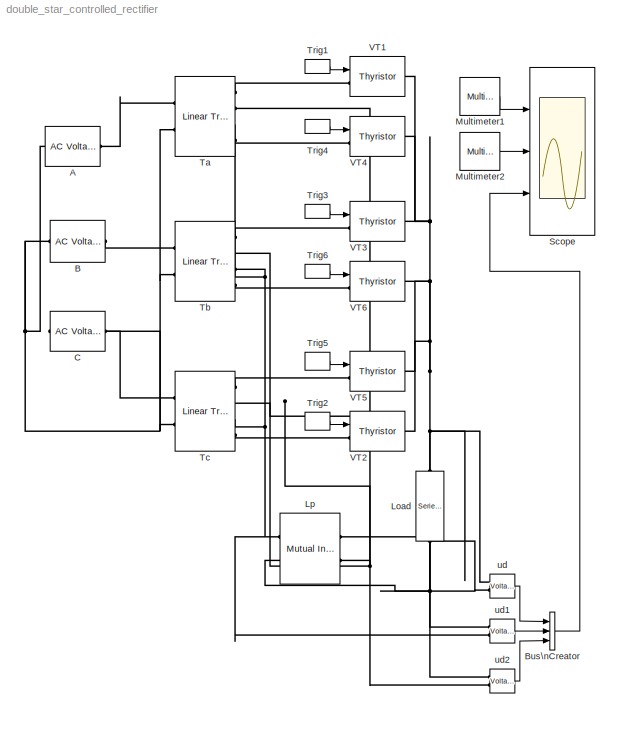
MODEL double_star_controlled_rectifier
KIND model
BLOCK [Reference] A  REF=powerlib/Electrical\nSources/AC Voltage Source
  Amplitude = 150
  Frequency = 50
  Measurements = Voltage
  Phase = 30
  Ports = [0, 0, 0, 0, 0, 1, 1]
  SampleTime = 0
  ShowPortLabels = on
  SourceBlock = powerlib/Electrical\nSources/AC Voltage Source
  SourceType = AC Voltage Source
BLOCK [Reference] B  REF=powerlib/Electrical\nSources/AC Voltage Source
  Amplitude = 150
  Frequency = 50
  Measurements = Voltage
  Phase = -90
  Ports = [0, 0, 0, 0, 0, 1, 1]
  SampleTime = 0
  ShowPortLabels = on
  SourceBlock = powerlib/Electrical\nSources/AC Voltage Source
  SourceType = AC Voltage Source
BLOCK [BusCreator] Bus\nCreator
  DialogController = Simulink.DDGSource_Bus
  DisplayOption = bar
  Inputs = 3
  Ports = [3, 1]
BLOCK [Reference] C  REF=powerlib/Electrical\nSources/AC Voltage Source
  Amplitude = 150
  Frequency = 50
  Measurements = Voltage
  Phase = -210
  Ports = [0, 0, 0, 0, 0, 1, 1]
  SampleTime = 0
  ShowPortLabels = on
  SourceBlock = powerlib/Electrical\nSources/AC Voltage Source
  SourceType = AC Voltage Source
BLOCK [Reference] Load  REF=powerlib/Elements/Series RLC Branch
  Capacitance = inf
  Inductance = 0.1
  LConnTagsString = __new0
  LeftPortType = p1
  Measurements = Branch voltage and current
  PhysicalDomain = powersysdomain
  Ports = [0, 0, 0, 0, 0, 1, 1]
  RConnTagsString = __new0
  Resistance = 5
  RightPortType = p1
  SourceBlock = powerlib/Elements/Series RLC Branch
  SourceType = Series RLC Branch
  SubClassName = unknown
BLOCK [Reference] Lp  REF=powerlib/Elements/Mutual Inductance
  AttributesFormatString = \\n
  LConnTagsString = a|b
  LeftPortType = p1
  Measurements = None
  MutualImpedance = [0 5.0e-02]
  PhysicalDomain = powersysdomain
  Ports = [0, 0, 0, 0, 0, 2, 2]
  RConnTagsString = A|B
  RightPortType = p1
  SelfImpedance1 = [0.5 5.1e-02]
  SelfImpedance2 = [0.5 5.1e-02]
  SelfImpedance3 = [ 1.1 1.1e-03]
  SourceBlock = powerlib/Elements/Mutual Inductance
  SourceType = Mutual Inductance
  SubClassName = unknown
  ThreeWindings = off
BLOCK [Reference] Multimeter1  REF=powerlib/Measurements/Multimeter
  AxesSetting = [0,0.1,-100,100]
  Display = 0
  Gain = [1 1 1]
  L = 26
  OutputType = Complex
  PSBOutputType = 1
  PSBequivalent = 0
  PhasorSimulation = off
  Ports = [0, 1]
  SavedBlockNames = -11
  ShowPortLabels = on
  SourceBlock = powerlib/Measurements/Multimeter
  SourceType = MultimeterPSB
  sel = [11 12 13]
  yselected = {'Usrc: A','Usrc: B','Usrc: C'};
BLOCK [Reference] Multimeter2  REF=powerlib/Measurements/Multimeter
  AxesSetting = [0,0.1,-100,100]
  Display = 0
  Gain = [-1 1]
  L = 26
  OutputType = Complex
  PSBOutputType = 1
  PSBequivalent = 0
  PhasorSimulation = off
  Ports = [0, 1]
  SavedBlockNames = -11
  ShowPortLabels = on
  SourceBlock = powerlib/Measurements/Multimeter
  SourceType = MultimeterPSB
  sel = [16 17]
  yselected = {'Iw2: Ta','Iw3: Ta'};
BLOCK [Scope] Scope
  DataFormat = StructureWithTime
  Decimation = 5
  NumInputPorts = 3
  Ports = [3]
  SampleTime = 1e-4
  TimeRange = 0.05
  YMax = 200~20~200
  YMin = -200~-20~-200
  ZoomMode = xonly
BLOCK [Reference] Ta  REF=powerlib/Elements/Linear Transformer
  LConnTagsString = a|b
  LeftPortType = p1
  Measurements = All voltages and currents
  NominalPower = [ 10000 50 ]
  PhysicalDomain = powersysdomain
  Ports = [0, 0, 0, 0, 0, 2, 4]
  RConnTagsString = A|B|C|D
  RightPortType = p1
  RmLm = [ 500 500 ]
  SourceBlock = powerlib/Elements/Linear Transformer
  SourceType = Linear Transformer
  SubClassName = unknown
  ThreeWindings = on
  winding1 = [ 100  0.002  0.08 ]
  winding2 = [ 100  0.002  0.08 ]
  winding3 = [ 100 0.002 0.08 ]
BLOCK [Reference] Tb  REF=powerlib/Elements/Linear Transformer
  LConnTagsString = a|b
  LeftPortType = p1
  Measurements = All voltages and currents
  NominalPower = [ 10000 50 ]
  PhysicalDomain = powersysdomain
  Ports = [0, 0, 0, 0, 0, 2, 4]
  RConnTagsString = A|B|C|D
  RightPortType = p1
  RmLm = [ 500 500 ]
  SourceBlock = powerlib/Elements/Linear Transformer
  SourceType = Linear Transformer
  SubClassName = unknown
  ThreeWindings = on
  winding1 = [ 100  0.002  0.08 ]
  winding2 = [ 100  0.002  0.08 ]
  winding3 = [ 100 0.002 0.08 ]
BLOCK [Reference] Tc  REF=powerlib/Elements/Linear Transformer
  LConnTagsString = a|b
  LeftPortType = p1
  Measurements = All voltages and currents
  NominalPower = [ 10000 50 ]
  PhysicalDomain = powersysdomain
  Ports = [0, 0, 0, 0, 0, 2, 4]
  RConnTagsString = A|B|C|D
  RightPortType = p1
  RmLm = [ 500 500 ]
  SourceBlock = powerlib/Elements/Linear Transformer
  SourceType = Linear Transformer
  SubClassName = unknown
  ThreeWindings = on
  winding1 = [ 100  0.002  0.08 ]
  winding2 = [ 100  0.002  0.08 ]
  winding3 = [ 100 0.002 0.08 ]
BLOCK [DiscretePulseGenerator] Trig1
  Amplitude = 10
  Period = 0.02
  PhaseDelay = 0.00167
  Ports = [0, 1]
  PulseType = Time based
  PulseWidth = 20
BLOCK [DiscretePulseGenerator] Trig2
  Amplitude = 10
  Period = 0.02
  PhaseDelay = 0.005
  Ports = [0, 1]
  PulseType = Time based
  PulseWidth = 20
BLOCK [DiscretePulseGenerator] Trig3
  Amplitude = 10
  Period = 0.02
  PhaseDelay = 0.008333
  Ports = [0, 1]
  PulseType = Time based
  PulseWidth = 20
BLOCK [DiscretePulseGenerator] Trig4
  Amplitude = 10
  Period = 0.02
  PhaseDelay = 0.01167
  Ports = [0, 1]
  PulseType = Time based
  PulseWidth = 20
BLOCK [DiscretePulseGenerator] Trig5
  Amplitude = 10
  Period = 0.02
  PhaseDelay = 0.015
  Ports = [0, 1]
  PulseType = Time based
  PulseWidth = 20
BLOCK [DiscretePulseGenerator] Trig6
  Amplitude = 10
  Period = 0.02
  PhaseDelay = 0.01833
  Ports = [0, 1]
  PulseType = Time based
  PulseWidth = 20
BLOCK [Reference] VT1  REF=powerlib/Power\nElectronics/Thyristor
  Cs = 100e-9
  IC = 0
  Lon = 0
  Measurements = off
  Ports = [1, 0, 0, 0, 0, 1, 1]
  Ron = 0.01
  Rs = 1000
  ShowPortLabels = on
  SourceBlock = powerlib/Power\nElectronics/Thyristor
  SourceType = Thyristor
  Vf = 0.8
BLOCK [Reference] VT2  REF=powerlib/Power\nElectronics/Thyristor
  Cs = 100e-9
  IC = 0
  Lon = 0
  Measurements = off
  Ports = [1, 0, 0, 0, 0, 1, 1]
  Ron = 0.01
  Rs = 1000
  ShowPortLabels = on
  SourceBlock = powerlib/Power\nElectronics/Thyristor
  SourceType = Thyristor
  Vf = 0.8
BLOCK [Reference] VT3  REF=powerlib/Power\nElectronics/Thyristor
  Cs = 100e-9
  IC = 0
  Lon = 0
  Measurements = off
  Ports = [1, 0, 0, 0, 0, 1, 1]
  Ron = 0.01
  Rs = 1000
  ShowPortLabels = on
  SourceBlock = powerlib/Power\nElectronics/Thyristor
  SourceType = Thyristor
  Vf = 0.8
BLOCK [Reference] VT4  REF=powerlib/Power\nElectronics/Thyristor
  Cs = 100e-9
  IC = 0
  Lon = 0
  Measurements = off
  Ports = [1, 0, 0, 0, 0, 1, 1]
  Ron = 0.01
  Rs = 1000
  ShowPortLabels = on
  SourceBlock = powerlib/Power\nElectronics/Thyristor
  SourceType = Thyristor
  Vf = 0.8
BLOCK [Reference] VT5  REF=powerlib/Power\nElectronics/Thyristor
  Cs = 100e-9
  IC = 0
  Lon = 0
  Measurements = off
  Ports = [1, 0, 0, 0, 0, 1, 1]
  Ron = 0.01
  Rs = 1000
  ShowPortLabels = on
  SourceBlock = powerlib/Power\nElectronics/Thyristor
  SourceType = Thyristor
  Vf = 0.8
BLOCK [Reference] VT6  REF=powerlib/Power\nElectronics/Thyristor
  Cs = 100e-9
  IC = 0
  Lon = 0
  Measurements = off
  Ports = [1, 0, 0, 0, 0, 1, 1]
  Ron = 0.01
  Rs = 1000
  ShowPortLabels = on
  SourceBlock = powerlib/Power\nElectronics/Thyristor
  SourceType = Thyristor
  Vf = 0.8
BLOCK [Reference] ud  REF=powerlib/Measurements/Voltage Measurement
  OutputType = Complex
  PSBequivalent = 0
  PhasorSimulation = off
  Ports = [0, 1, 0, 0, 0, 2]
  ShowPortLabels = on
  SourceBlock = powerlib/Measurements/Voltage Measurement
  SourceType = Voltage Measurement
BLOCK [Reference] ud1  REF=powerlib/Measurements/Voltage Measurement
  OutputType = Complex
  PSBequivalent = 0
  PhasorSimulation = off
  Ports = [0, 1, 0, 0, 0, 2]
  ShowPortLabels = on
  SourceBlock = powerlib/Measurements/Voltage Measurement
  SourceType = Voltage Measurement
BLOCK [Reference] ud2  REF=powerlib/Measurements/Voltage Measurement
  OutputType = Complex
  PSBequivalent = 0
  PhasorSimulation = off
  Ports = [0, 1, 0, 0, 0, 2]
  ShowPortLabels = on
  SourceBlock = powerlib/Measurements/Voltage Measurement
  SourceType = Voltage Measurement
LINE Bus\nCreator:1 -> Scope:3
LINE Multimeter1:1 -> Scope:1
LINE Multimeter2:1 -> Scope:2
LINE Trig1:1 -> VT1:1
LINE Trig2:1 -> VT2:1
LINE Trig3:1 -> VT3:1
LINE Trig4:1 -> VT4:1
LINE Trig5:1 -> VT5:1
LINE Trig6:1 -> VT6:1
LINE ud1:1 -> Bus\nCreator:2
LINE ud2:1 -> Bus\nCreator:3
LINE ud:1 -> Bus\nCreator:1
PNET net1: A:LConn1 -- B:LConn1 -- C:LConn1 -- Ta:LConn2 -- Tb:LConn2 -- Tc:LConn2
PLINE A:RConn1 -- Ta:LConn1
PLINE B:RConn1 -- Tb:LConn1
PLINE C:RConn1 -- Tc:LConn1
PNET net2: Load:LConn1 -- VT1:RConn1 -- VT2:RConn1 -- VT3:RConn1 -- VT4:RConn1 -- VT5:RConn1 -- VT6:RConn1 -- ud1:LConn1 -- ud2:LConn1 -- ud:LConn1
PNET net3: Load:RConn1 -- Lp:LConn1 -- Lp:RConn2 -- ud:LConn2
PNET net4: Lp:LConn2 -- Ta:RConn2 -- Tb:RConn2 -- Tc:RConn2 -- ud2:LConn2
PNET net5: Lp:RConn1 -- Ta:RConn3 -- Tb:RConn3 -- Tc:RConn3 -- ud1:LConn2
PLINE Ta:RConn1 -- VT1:LConn1
PLINE Ta:RConn4 -- VT4:LConn1
PLINE Tb:RConn1 -- VT3:LConn1
PLINE Tb:RConn4 -- VT6:LConn1
PLINE Tc:RConn1 -- VT5:LConn1
PLINE Tc:RConn4 -- VT2:LConn1
note: PNET lines group multi-terminal physical nets as a canonical sorted terminal list (undirected conserving connections); 2-terminal nets keep the pairwise PLINE form
